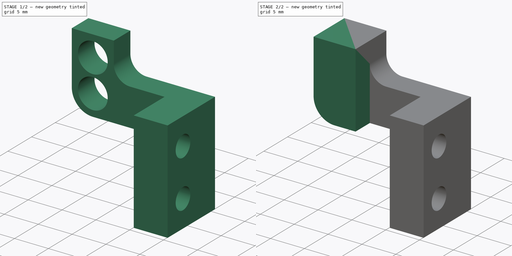
[diagram: build sequence overview — one tinted view per stage of 2, left to right]
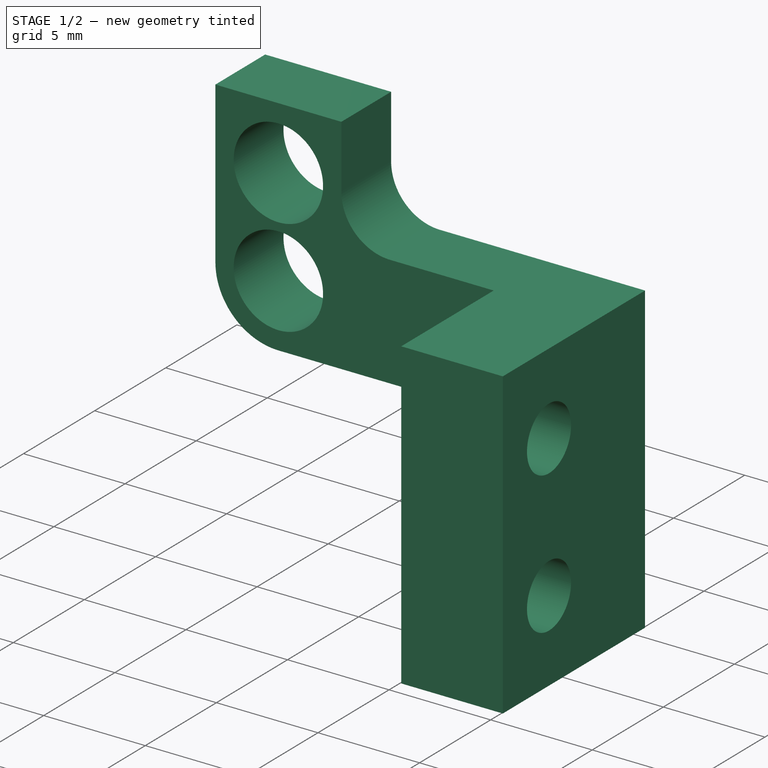
[diagram: stage 1 of 2 — iso view after this stage's code; geometry added in this stage tinted green]
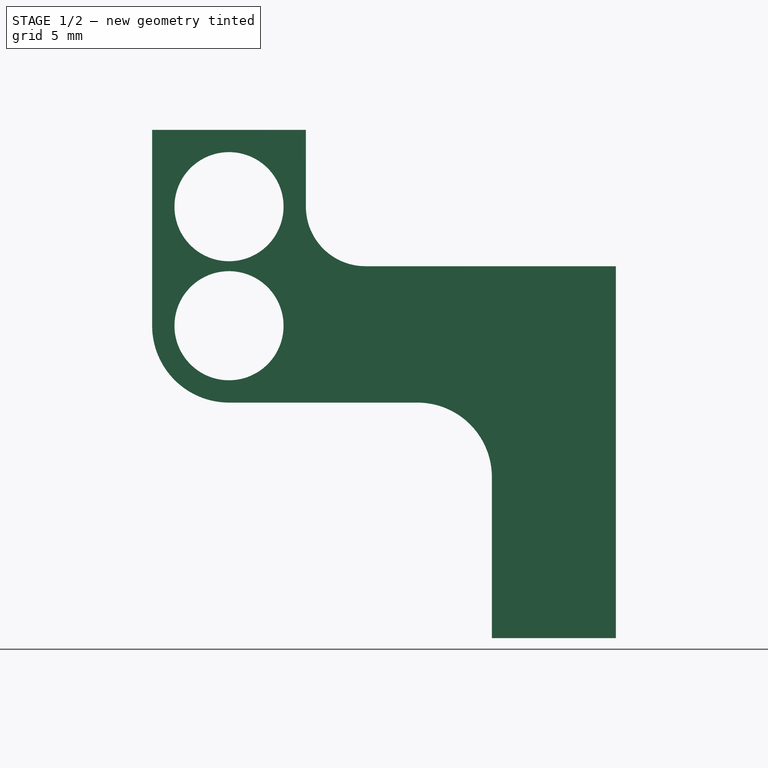
[diagram: stage 1 of 2 — front view after this stage's code; geometry added in this stage tinted green]
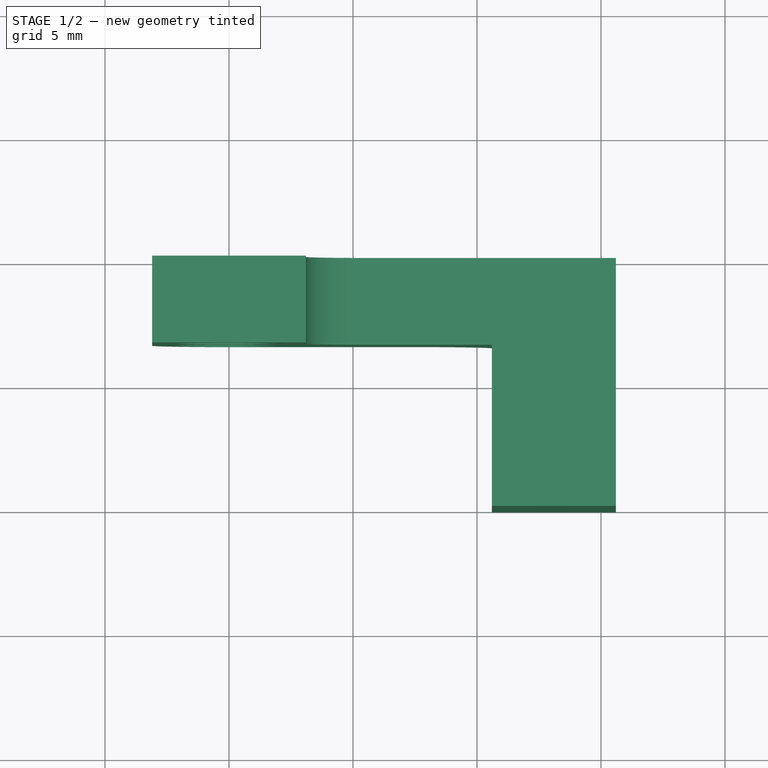
[diagram: stage 1 of 2 — top view after this stage's code; geometry added in this stage tinted green]
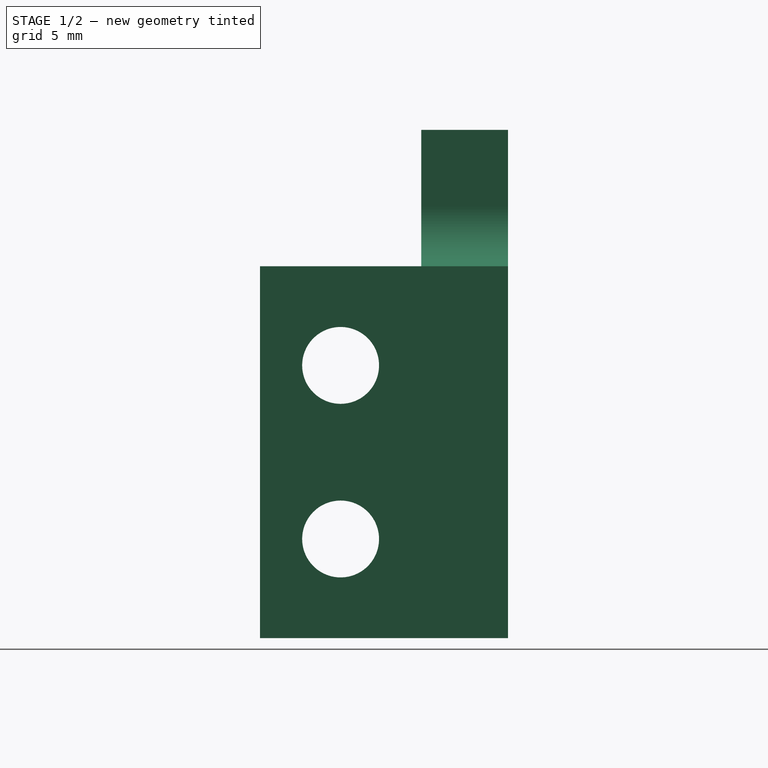
[diagram: stage 1 of 2 — right view after this stage's code; geometry added in this stage tinted green]
FCSTD DOCUMENT  (FreeCAD 0.19R24291 (Git))
Label: ri_tube-support01
License: All rights reserved
LicenseURL: http://en.wikipedia.org/wiki/All_rights_reserved
objects: Sketcher::SketchObject×4, PartDesign::Pad×3, PartDesign::Pocket×1, PartDesign::Body×1, App::Part×1
note: 13 computed .brp shape members not serialized (recipe doc carries the construction recipe); baked Part::Feature solids carry a one-line shape summary decoded from their .brp

FEATURE [Sketcher::SketchObject] Sketch
  FullyConstrained = true
  MapMode = 5
  Placement = pos=(0,0,0) rot=(1,0,0;1.5708rad)
  Support = -> [XZ_Plane001]
  sketch-geometry (18):
    g0: LineSegment StartX=10.6 StartY=-8.5 StartZ=0 EndX=10.6 EndY=-15 EndZ=0
    g1: LineSegment StartX=10.6 StartY=-15 StartZ=0 EndX=15.6 EndY=-15 EndZ=0
    g2: LineSegment StartX=15.6 StartY=-15 StartZ=0 EndX=15.6 EndY=0 EndZ=0
    g3: Circle CenterX=0 CenterY=2.4 CenterZ=0 NormalX=0 NormalY=0 NormalZ=1 AngleXU=0 Radius=2.2
    g4: Circle CenterX=0 CenterY=-2.4 CenterZ=0 NormalX=0 NormalY=0 NormalZ=1 AngleXU=0 Radius=2.2
    g5: LineSegment StartX=7.6 StartY=-5.5 StartZ=0 EndX=-9e-16 EndY=-5.5 EndZ=0
    g6: LineSegment StartX=-3.1 StartY=-2.4 StartZ=0 EndX=-3.1 EndY=5.5 EndZ=0
    g7: LineSegment StartX=-3.1 StartY=5.5 StartZ=0 EndX=3.1 EndY=5.5 EndZ=0
    g8: LineSegment StartX=3.1 StartY=5.5 StartZ=0 EndX=3.1 EndY=2.4 EndZ=0
    g9: LineSegment StartX=5.5 StartY=0 StartZ=0 EndX=15.6 EndY=0 EndZ=0
    g10: GeomPoint X=0 Y=5.5 Z=0
    g11: GeomPoint X=0 Y=-5.5 Z=0
    g12: ArcOfCircle CenterX=7.6 CenterY=-8.5 CenterZ=0 NormalX=0 NormalY=0 NormalZ=1 AngleXU=0 Radius=3 StartAngle=0 EndAngle=1.5708
    g13: GeomPoint X=10.6 Y=-5.5 Z=0
    g14: ArcOfCircle CenterX=0 CenterY=-2.4 CenterZ=0 NormalX=0 NormalY=0 NormalZ=1 AngleXU=0 Radius=3.1 StartAngle=3.14159 EndAngle=4.71239
    g15: GeomPoint X=-3.1 Y=-5.2 Z=0
    g16: ArcOfCircle CenterX=5.5 CenterY=2.4 CenterZ=0 NormalX=0 NormalY=0 NormalZ=1 AngleXU=0 Radius=2.4 StartAngle=3.14159 EndAngle=4.71239
    g17: GeomPoint X=3.1 Y=0 Z=0
  constraints (42):
    c: Vertical(g0)
    c: Coincident(g0,g1)
    c: Horizontal(g1)
    c: Coincident(g1,g2)
    c: PointOnObject(g2,g-1)
    c: Vertical(g2)
    c: DistanceY(g2,g2) = 15
    c: DistanceX(g1,g1) = 5
    c: Equal(g3,g4)
    c: Diameter(g3) = 4.4
    c: Symmetric(g3,g4,g-1)
    c: DistanceY(g4,g3) = 4.8
    c: DistanceX(g-1,g2) = 15.6
    c: Vertical(g3,g4)
    c: Horizontal(g5)
    c: Vertical(g6)
    c: Coincident(g6,g7)
    c: Horizontal(g7)
    c: Coincident(g7,g8)
    c: PointOnObject(g17,g-1)
    c: Vertical(g8)
    c: Coincident(g9,g2)
    c: PointOnObject(g11,g5)
    c: Vertical(g10,g11)
    c: Symmetric(g6,g7,g10)
    c: Symmetric(g10,g11,g-1)
    c: DistanceX(g7,g7) = 6.2
    c: DistanceY(g15,g6) = 10.7
    c: PointOnObject(g13,g5)
    c: PointOnObject(g13,g0)
    c: Tangent(g5,g12) = -1.5708
    c: Tangent(g0,g12) = 1.5708
    c: Radius(g12) = 3
    c: PointOnObject(g15,g6)
    c: Tangent(g5,g14) = 1.5708
    c: Tangent(g6,g14) = 1.5708
    c: Coincident(g14,g4)
    c: PointOnObject(g17,g8)
    c: PointOnObject(g17,g9)
    c: Tangent(g8,g16) = -1.5708
    c: Tangent(g9,g16) = -1.5708
    c: Horizontal(g3,g8)
FEATURE [PartDesign::Pad] Pad
  Direction = (1,1,1)
  Length = 3.5
  Length2 = 100
  Placement = pos=(0,0,0) rot=(1,0,0;1.5708rad)
  Profile = -> Sketch
  Refine = true
  Type = 0
FEATURE [Sketcher::SketchObject] Sketch001
  ExternalGeometry = -> [Pad]
  FullyConstrained = true
  MapMode = 5
  Placement = pos=(15.6,0,0) rot=(0.707107,0,0.707107;3.14159rad)
  Support = -> [Pad]
  sketch-geometry (9):
    g0: LineSegment StartX=-15 StartY=3.5 StartZ=0 EndX=1.8e-15 EndY=3.5 EndZ=0
    g1: LineSegment StartX=1.8e-15 StartY=3.5 StartZ=0 EndX=6.7e-15 EndY=10 EndZ=0
    g2: LineSegment StartX=6.7e-15 StartY=10 StartZ=0 EndX=-15 EndY=10 EndZ=0
    g3: LineSegment StartX=-15 StartY=10 StartZ=0 EndX=-15 EndY=3.5 EndZ=0
    g4: Circle CenterX=-4 CenterY=6.75 CenterZ=0 NormalX=0 NormalY=0 NormalZ=1 AngleXU=0 Radius=1.55
    g5: Circle CenterX=-11 CenterY=6.75 CenterZ=0 NormalX=0 NormalY=0 NormalZ=1 AngleXU=0 Radius=1.55
    g6: GeomPoint X=-7.5 Y=6.75 Z=0
    g7: GeomPoint X=-15 Y=6.75 Z=0
    g8: GeomPoint X=-7.5 Y=10 Z=0
  constraints (20):
    c: Coincident(g0,g1)
    c: Coincident(g1,g2)
    c: Coincident(g2,g3)
    c: Coincident(g3,g0)
    c: Horizontal(g0)
    c: Horizontal(g2)
    c: Coincident(g0,g-4)
    c: Tangent(g1,g-6)
    c: Tangent(g-4,g3)
    c: DistanceY(g-1,g1) = 10
    c: Equal(g4,g5)
    c: Horizontal(g4,g5)
    c: Diameter(g4) = 3.1
    c: Symmetric(g4,g5,g6)
    c: DistanceX(g5,g4) = 7
    c: PointOnObject(g7,g3)
    c: Symmetric(g1,g2,g8)
    c: Symmetric(g2,g0,g7)
    c: Horizontal(g6,g7)
    c: Vertical(g8,g6)
FEATURE [PartDesign::Pad] Pad001
  BaseFeature = -> Pad
  Direction = (1,1,1)
  Length = 10
  Length2 = 100
  Placement = pos=(0,0,0) rot=(1,0,0;1.5708rad)
  Profile = -> Sketch001
  Refine = true
  Type = 3
  UpToFace = -> Pad [Face2]
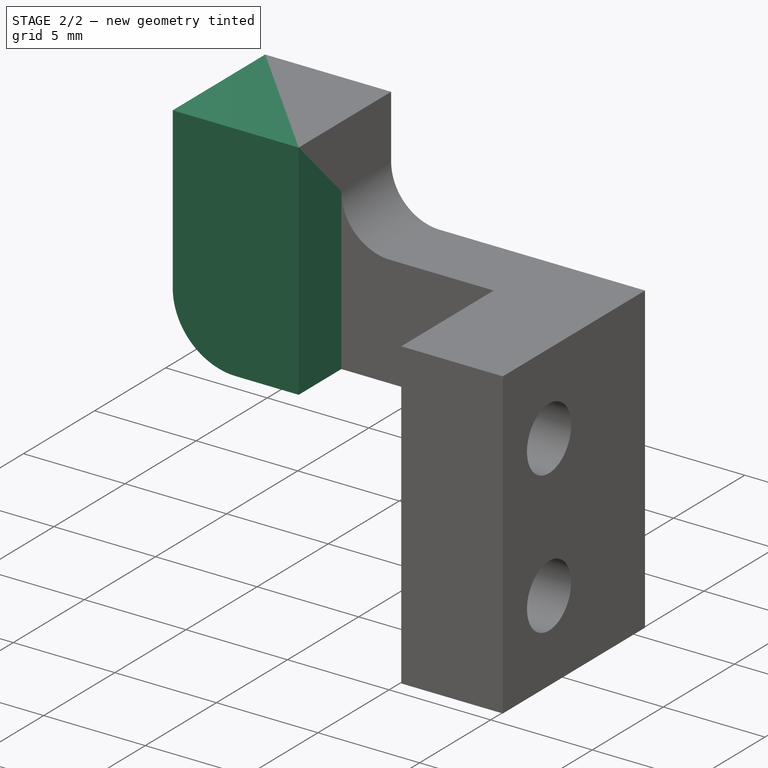
[diagram: stage 2 of 2 — iso view after this stage's code; geometry added in this stage tinted green]
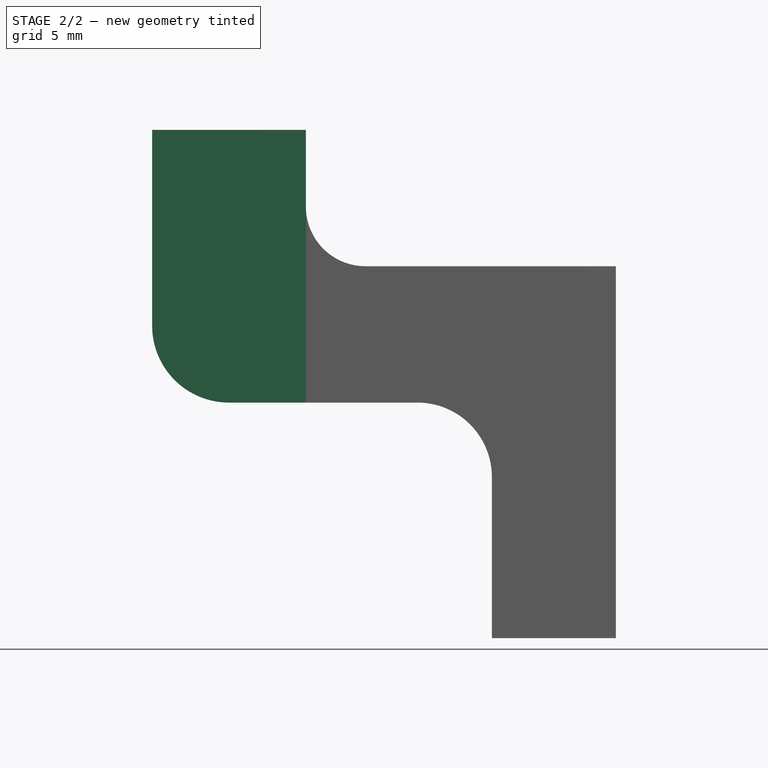
[diagram: stage 2 of 2 — front view after this stage's code; geometry added in this stage tinted green]
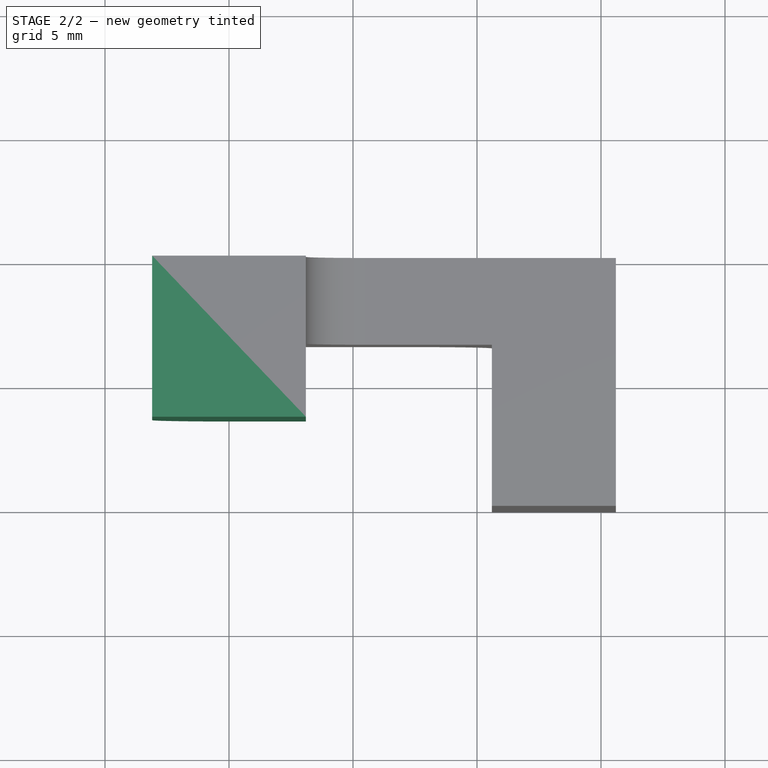
[diagram: stage 2 of 2 — top view after this stage's code; geometry added in this stage tinted green]
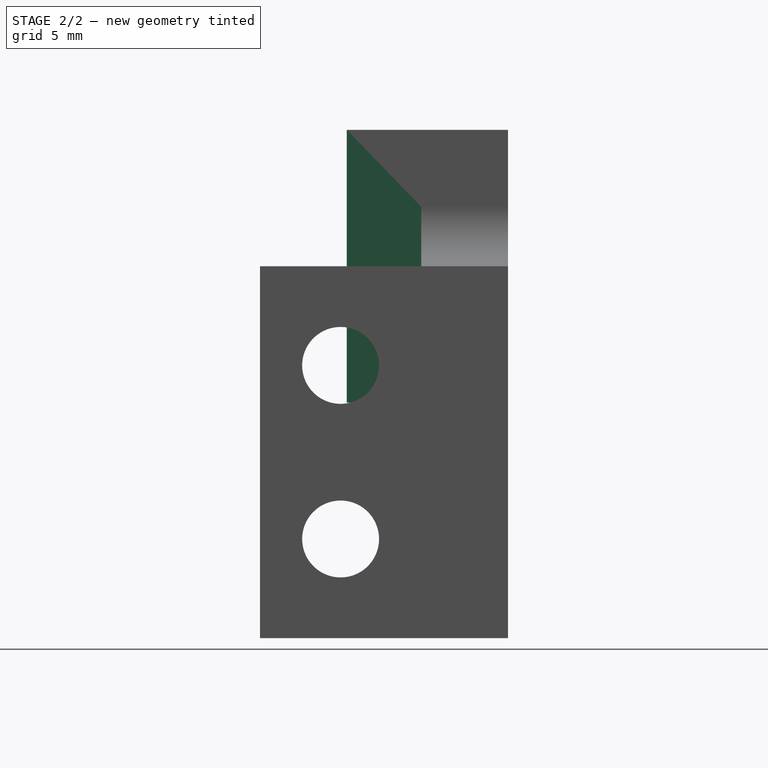
[diagram: stage 2 of 2 — right view after this stage's code; geometry added in this stage tinted green]
FEATURE [Sketcher::SketchObject] Sketch002
  ExternalGeometry = -> [Pad001]
  FullyConstrained = true
  MapMode = 5
  Placement = pos=(10.6,0,0) rot=(0.707107,0,-0.707107;3.14159rad)
  Support = -> [Pad001]
  sketch-geometry (8):
    g0: LineSegment StartX=1.25 StartY=4 StartZ=0 EndX=6.75 EndY=4 EndZ=0
    g1: LineSegment StartX=6.75 StartY=4 StartZ=0 EndX=6.75 EndY=9.5 EndZ=0
    g2: LineSegment StartX=6.75 StartY=9.5 StartZ=0 EndX=1.25 EndY=9.5 EndZ=0
    g3: LineSegment StartX=1.25 StartY=9.5 StartZ=0 EndX=1.25 EndY=4 EndZ=0
    g4: LineSegment StartX=8.25 StartY=4 StartZ=0 EndX=13.75 EndY=4 EndZ=0
    g5: LineSegment StartX=13.75 StartY=4 StartZ=0 EndX=13.75 EndY=9.5 EndZ=0
    g6: LineSegment StartX=13.75 StartY=9.5 StartZ=0 EndX=8.25 EndY=9.5 EndZ=0
    g7: LineSegment StartX=8.25 StartY=9.5 StartZ=0 EndX=8.25 EndY=4 EndZ=0
  constraints (22):
    c: Coincident(g0,g1)
    c: Coincident(g1,g2)
    c: Coincident(g2,g3)
    c: Coincident(g3,g0)
    c: Horizontal(g0)
    c: Horizontal(g2)
    c: Vertical(g1)
    c: Vertical(g3)
    c: Coincident(g4,g5)
    c: Coincident(g5,g6)
    c: Coincident(g6,g7)
    c: Coincident(g7,g4)
    c: Horizontal(g4)
    c: Horizontal(g6)
    c: Vertical(g5)
    c: Vertical(g7)
    c: Equal(g2,g3)
    c: Equal(g6,g7)
    c: Equal(g6,g2)
    c: Symmetric(g0,g1,g-3)
    c: Symmetric(g4,g5,g-4)
    c: DistanceY(g5,g5) = 5.5
FEATURE [PartDesign::Pocket] Pocket
  BaseFeature = -> Pad001
  Length = 2
  Length2 = 100
  Placement = pos=(0,0,0) rot=(1,0,0;1.5708rad)
  Profile = -> Sketch002
  Refine = true
  Type = 0
FEATURE [Sketcher::SketchObject] Sketch003
  ExternalGeometry = -> [Pocket]
  FullyConstrained = true
  MapMode = 5
  Placement = pos=(0,-3.5,5.4e-15) rot=(1,0,0;1.5708rad)
  Support = -> [Pocket]
  sketch-geometry (7):
    g0: GeomPoint X=3.1 Y=-5.5 Z=0
    g1: LineSegment StartX=-3.1 StartY=5.5 StartZ=0 EndX=3.1 EndY=5.5 EndZ=0
    g2: LineSegment StartX=3.1 StartY=5.5 StartZ=0 EndX=3.1 EndY=-5.5 EndZ=0
    g3: LineSegment StartX=3.1 StartY=-5.5 StartZ=0 EndX=-4e-16 EndY=-5.5 EndZ=0
    g4: LineSegment StartX=-3.1 StartY=-2.4 StartZ=0 EndX=-3.1 EndY=5.5 EndZ=0
    g5: ArcOfCircle CenterX=0 CenterY=-2.4 CenterZ=0 NormalX=0 NormalY=0 NormalZ=1 AngleXU=0 Radius=3.1 StartAngle=3.14159 EndAngle=4.71239
    g6: GeomPoint X=-3.1 Y=-5.5 Z=0
  constraints (15):
    c: PointOnObject(g0,g-7)
    c: Vertical(g-4,g0)
    c: Coincident(g1,g2)
    c: Coincident(g2,g3)
    c: Coincident(g4,g1)
    c: Horizontal(g1)
    c: Horizontal(g3)
    c: Vertical(g2)
    c: Coincident(g1,g-5)
    c: Coincident(g2,g0)
    c: PointOnObject(g6,g4)
    c: PointOnObject(g6,g3)
    c: Tangent(g4,g5) = 1.5708
    c: Tangent(g3,g5) = 1.5708
    c: Coincident(g5,g-6)
FEATURE [PartDesign::Pad] Pad002
  BaseFeature = -> Pocket
  Direction = (1,1,1)
  Length = 3
  Length2 = 100
  Placement = pos=(0,0,0) rot=(1,0,0;1.5708rad)
  Profile = -> Sketch003
  Refine = true
  Type = 0
FEATURE [PartDesign::Body] Body
  Group = -> [Sketch,Pad,Sketch001,Pad001,Sketch002,Pocket,Sketch003,Pad002]
  Origin = -> Origin001
  Tip = -> Pad002
FEATURE [App::Part] Part
  Group = -> [Body]
  Origin = -> Origin
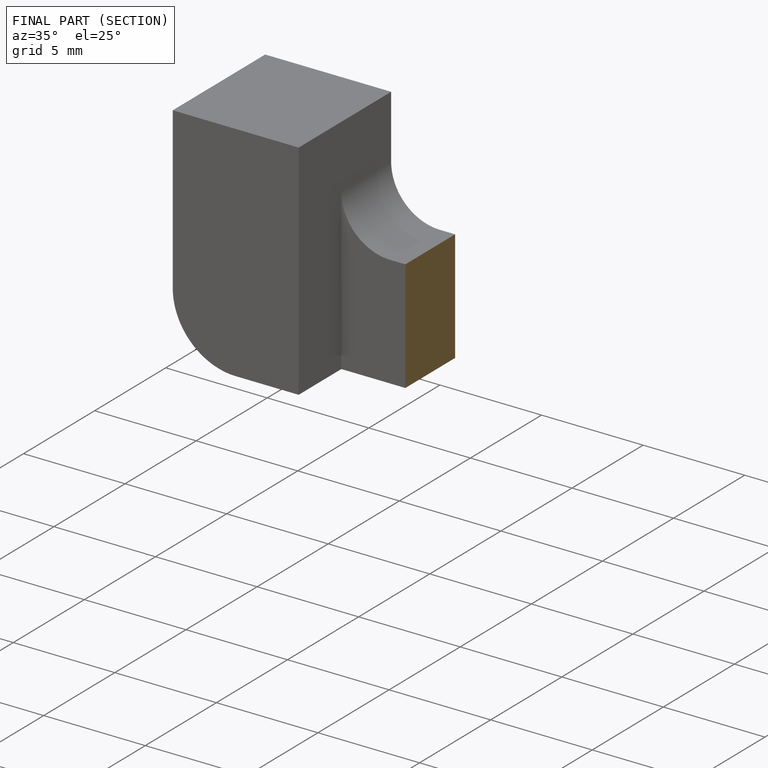
[diagram: finished part — half-section view (interior)]
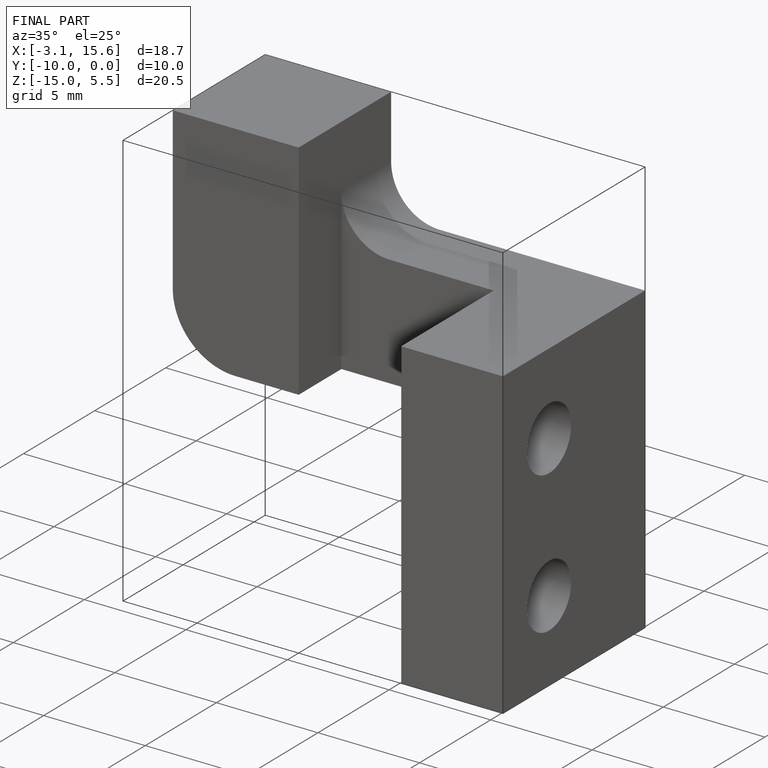
[diagram: finished part — iso view with bounding-box wireframe]
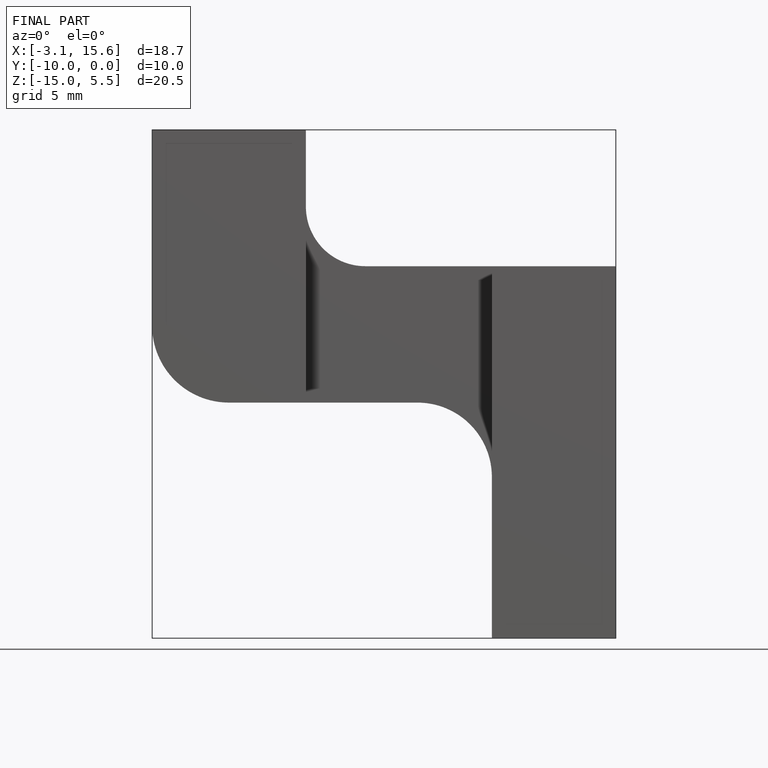
[diagram: finished part — front view with bounding-box wireframe]
